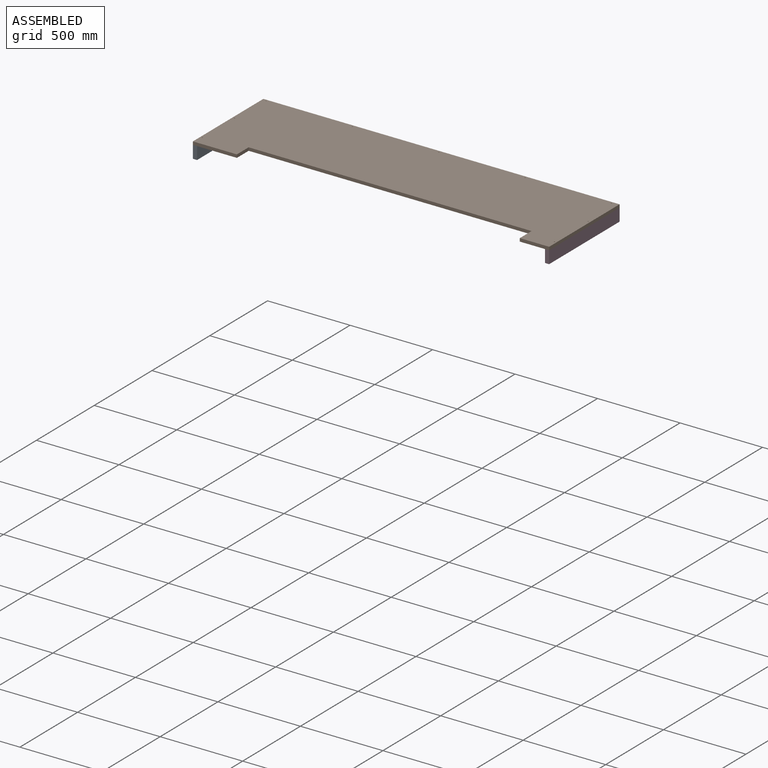
[diagram: assembled view]
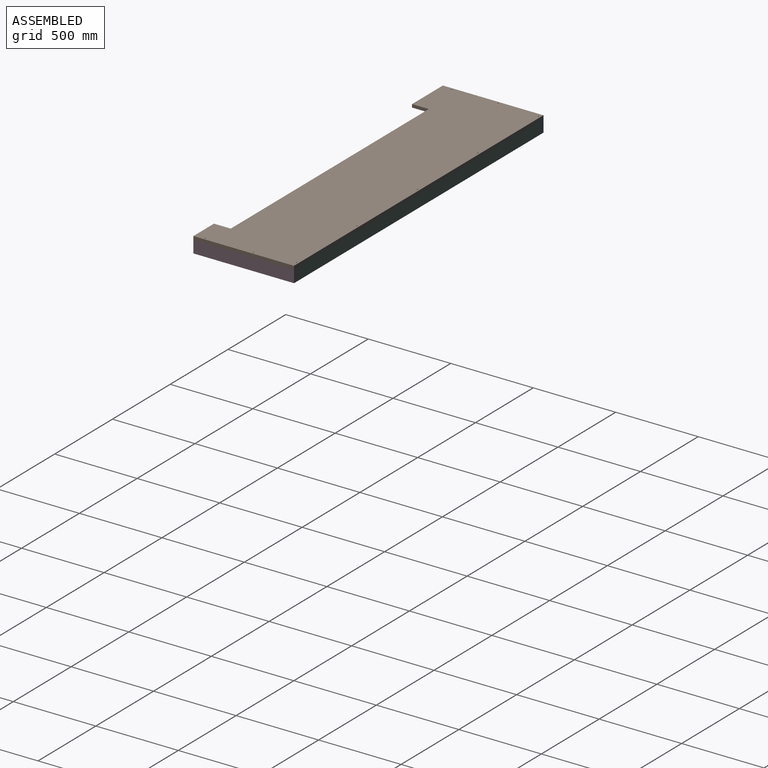
[diagram: assembled view, second angle]
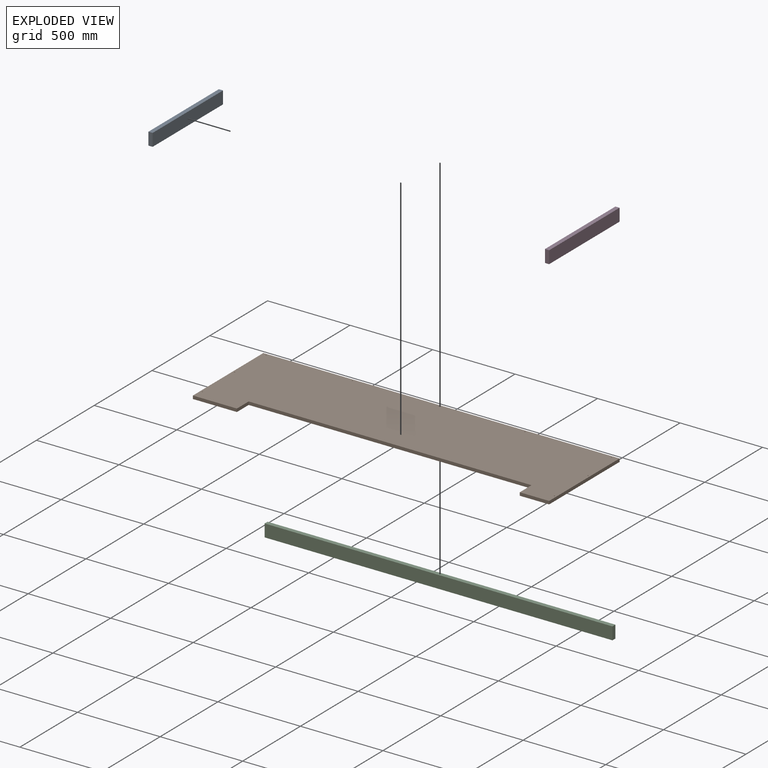
[diagram: exploded view]
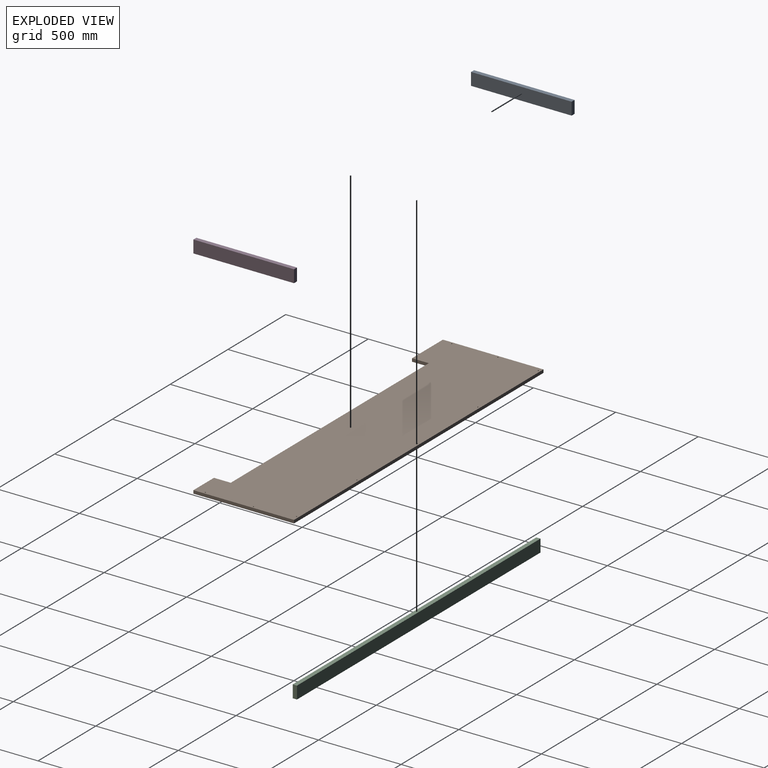
[diagram: exploded view, second angle]
ASSEMBLY  parts=4 mates=5
PART A: 6 faces, bbox 25.4x609.6x76.2 mm
  f0: plane 609.6x25.4mm, normal (0,0,1), area 15483.8mm2, adj f1,f3,f4,f5
  f1: plane 76.2x25.4mm, normal (0,1,0), area 1935.5mm2, adj f0,f2,f4,f5
  f2: plane 609.6x25.4mm, normal (0,0,-1), area 15483.8mm2, adj f1,f3,f4,f5
  f3: plane 76.2x25.4mm, normal (0,-1,0), area 1935.5mm2, adj f0,f2,f4,f5
  f4: plane 609.6x76.2mm, normal (-1,0,0), area 46451.5mm2, adj f0,f1,f2,f3
  f5: plane 609.6x76.2mm, normal (1,0,0), area 46451.5mm2, adj f0,f1,f2,f3
PART B: 55 faces, bbox 2159x609.6x28.3 mm
  f0: plane 609.6x19.05mm, normal (1,0,0), area 11612.9mm2, adj f1,f7,f8,f9
  f1: plane 2159x19.05mm, normal (0,1,0), area 41129mm2, adj f0,f2,f8,f9
  f2: plane 609.6x19.05mm, normal (-1,0,0), area 11612.9mm2, adj f1,f3,f8,f9
  f3: plane 266.7x19.05mm, normal (0,-1,0), area 5080.6mm2, adj f2,f4,f8,f9
  f4: plane 101.6x19.05mm, normal (1,0,0), area 1935.5mm2, adj f3,f5,f8,f9
  f5: plane 1714.5x19.05mm, normal (0,-1,0), area 32661.2mm2, adj f4,f6,f8,f9
  f6: plane 101.6x19.05mm, normal (-1,0,0), area 1935.5mm2, adj f5,f7,f8,f9
  f7: plane 177.8x19.05mm, normal (0,-1,0), area 3387.1mm2, adj f0,f6,f8,f9
  f8: plane 2159x609.6mm, normal (0,0,1), area 1141648.2mm2, adj f0,f1,f2,f3,f4,f5,f6,f7
  f9: plane 2159x609.6mm, normal (0,0,-1), area 1139170.4mm2, adj f0,f1,f2,f3,f4,f5,f6,f7
  f10: cylinder r=3.17mm len=19.05mm, axis (0,0,-1), area 380mm2, adj f8,f9
  f11: cylinder r=3.17mm len=19.05mm, axis (0,0,-1), area 380mm2, adj f8,f9
  f12: cylinder r=3.17mm len=19.05mm, axis (0,0,-1), area 380mm2, adj f8,f9
  f13: cylinder r=3.17mm len=19.05mm, axis (0,0,-1), area 380mm2, adj f8,f9
  f14: cylinder r=3.17mm len=19.05mm, axis (0,0,-1), area 380mm2, adj f8,f9
  f15: cylinder r=3.17mm len=19.05mm, axis (0,0,-1), area 380mm2, adj f8,f9
  f16: cylinder r=3.17mm len=19.05mm, axis (0,0,-1), area 380mm2, adj f8,f9
  f17: cylinder r=3.17mm len=19.05mm, axis (0,0,-1), area 380mm2, adj f8,f9
  f18: cylinder r=3.17mm len=19.05mm, axis (0,0,-1), area 380mm2, adj f8,f9
  f19: cylinder r=4.76mm len=40.55mm, axis (0,-0.97,0.26), area 640.6mm2, adj f9,f20
  f20: plane 9.53x9.2mm, normal (0,0.97,-0.26), area 58.9mm2, adj f19,f22
  f21: plane 3.97x3.83mm, normal (0,0.97,-0.26), area 12.4mm2, adj f22
  f22: cylinder r=1.98mm len=13.29mm, axis (0,-0.97,0.26), area 158.3mm2, adj f20,f21
  f23: cylinder r=4.76mm len=40.55mm, axis (0,-0.97,0.26), area 640.6mm2, adj f9,f24
  f24: plane 9.53x9.2mm, normal (0,0.97,-0.26), area 58.9mm2, adj f23,f26
  f25: plane 3.97x3.83mm, normal (0,0.97,-0.26), area 12.4mm2, adj f26
  f26: cylinder r=1.98mm len=13.29mm, axis (0,-0.97,0.26), area 158.3mm2, adj f24,f25
  f27: cylinder r=4.76mm len=40.55mm, axis (0,-0.97,0.26), area 640.6mm2, adj f9,f28
  f28: plane 9.53x9.2mm, normal (0,0.97,-0.26), area 58.9mm2, adj f27,f30
  f29: plane 3.97x3.83mm, normal (0,0.97,-0.26), area 12.4mm2, adj f30
  f30: cylinder r=1.98mm len=13.29mm, axis (0,-0.97,0.26), area 158.3mm2, adj f28,f29
  f31: cylinder r=4.76mm len=40.55mm, axis (0,-0.97,0.26), area 640.6mm2, adj f9,f32
  f32: plane 9.53x9.2mm, normal (0,0.97,-0.26), area 58.9mm2, adj f31,f34
  f33: plane 3.97x3.83mm, normal (0,0.97,-0.26), area 12.4mm2, adj f34
  f34: cylinder r=1.98mm len=13.29mm, axis (0,-0.97,0.26), area 158.3mm2, adj f32,f33
  f35: cylinder r=4.76mm len=40.55mm, axis (0,-0.97,0.26), area 640.6mm2, adj f9,f36
  f36: plane 9.53x9.2mm, normal (0,0.97,-0.26), area 58.9mm2, adj f35,f38
  f37: plane 3.97x3.83mm, normal (0,0.97,-0.26), area 12.4mm2, adj f38
  f38: cylinder r=1.98mm len=13.29mm, axis (0,-0.97,0.26), area 158.3mm2, adj f36,f37
  f39: cylinder r=4.76mm len=40.55mm, axis (0,-0.97,0.26), area 640.6mm2, adj f9,f40
  f40: plane 9.53x9.2mm, normal (0,0.97,-0.26), area 58.9mm2, adj f39,f42
  f41: plane 3.97x3.83mm, normal (0,0.97,-0.26), area 12.4mm2, adj f42
  f42: cylinder r=1.98mm len=13.29mm, axis (0,-0.97,0.26), area 158.3mm2, adj f40,f41
  f43: cylinder r=4.76mm len=40.55mm, axis (0,-0.97,0.26), area 640.6mm2, adj f9,f44
  f44: plane 9.53x9.2mm, normal (0,0.97,-0.26), area 58.9mm2, adj f43,f46
  f45: plane 3.97x3.83mm, normal (0,0.97,-0.26), area 12.4mm2, adj f46
  f46: cylinder r=1.98mm len=13.29mm, axis (0,-0.97,0.26), area 158.3mm2, adj f44,f45
  f47: cylinder r=4.76mm len=40.55mm, axis (0,-0.97,0.26), area 640.6mm2, adj f9,f48
  f48: plane 9.53x9.2mm, normal (0,0.97,-0.26), area 58.9mm2, adj f47,f50
  f49: plane 3.97x3.83mm, normal (0,0.97,-0.26), area 12.4mm2, adj f50
  f50: cylinder r=1.98mm len=13.29mm, axis (0,-0.97,0.26), area 158.3mm2, adj f48,f49
  f51: cylinder r=4.76mm len=40.55mm, axis (0,-0.97,0.26), area 640.6mm2, adj f9,f52
  f52: plane 9.53x9.2mm, normal (0,0.97,-0.26), area 58.9mm2, adj f51,f54
  f53: plane 3.97x3.83mm, normal (0,0.97,-0.26), area 12.4mm2, adj f54
  f54: cylinder r=1.98mm len=13.29mm, axis (0,-0.97,0.26), area 158.3mm2, adj f52,f53
PART C: 6 faces, bbox 2108.2x25.4x76.2 mm
  f0: plane 76.2x25.4mm, normal (-1,0,0), area 1935.5mm2, adj f1,f3,f4,f5
  f1: plane 2108.2x25.4mm, normal (0,0,-1), area 53548.3mm2, adj f0,f2,f4,f5
  f2: plane 76.2x25.4mm, normal (1,0,0), area 1935.5mm2, adj f1,f3,f4,f5
  f3: plane 2108.2x25.4mm, normal (0,0,1), area 53548.3mm2, adj f0,f2,f4,f5
  f4: plane 2108.2x76.2mm, normal (0,-1,0), area 160644.8mm2, adj f0,f1,f2,f3
  f5: plane 2108.2x76.2mm, normal (0,1,0), area 160644.8mm2, adj f0,f1,f2,f3
PART D: 6 faces, bbox 25.4x609.6x76.2 mm
  f0: plane 609.6x25.4mm, normal (0,0,-1), area 15483.8mm2, adj f1,f3,f4,f5
  f1: plane 76.2x25.4mm, normal (0,1,0), area 1935.5mm2, adj f0,f2,f4,f5
  f2: plane 609.6x25.4mm, normal (0,0,1), area 15483.8mm2, adj f1,f3,f4,f5
  f3: plane 76.2x25.4mm, normal (0,-1,0), area 1935.5mm2, adj f0,f2,f4,f5
  f4: plane 609.6x76.2mm, normal (1,0,0), area 46451.5mm2, adj f0,f1,f2,f3
  f5: plane 609.6x76.2mm, normal (-1,0,0), area 46451.5mm2, adj f0,f1,f2,f3
PLACE A t=(-370.33,681.32,173.47)mm
PLACE B t=(-370.33,681.32,173.47)mm
PLACE C t=(-370.33,681.32,173.47)mm
PLACE D t=(-370.33,681.32,173.47)mm
MATE fastened D.f2 <-> B.f9  axis (0,0,1) through (757.17,376.52,140.19)mm
MATE fastened C.f2 <-> D.f5  axis (1,0,0) through (731.77,681.32,102.09)mm
MATE fastened A.f0 <-> B.f9  axis (0,0,1) through (-1401.83,376.52,140.19)mm
MATE fastened C.f3 <-> B.f9  axis (0,0,1) through (-322.33,681.32,140.19)mm
MATE fastened C.f0 <-> A.f5  axis (-1,0,0) through (-1376.43,681.32,102.09)mm
